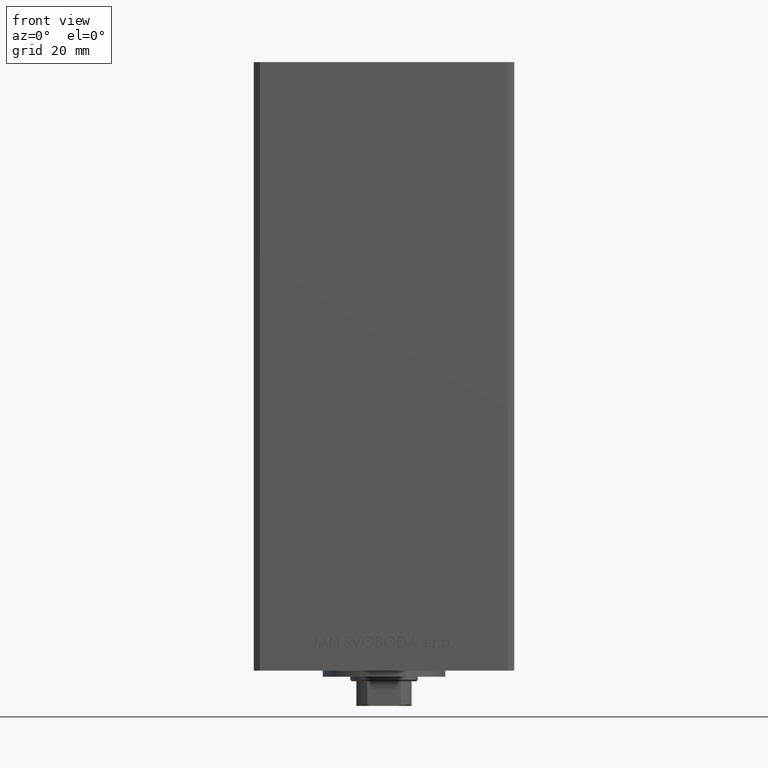
[diagram: clean part render]
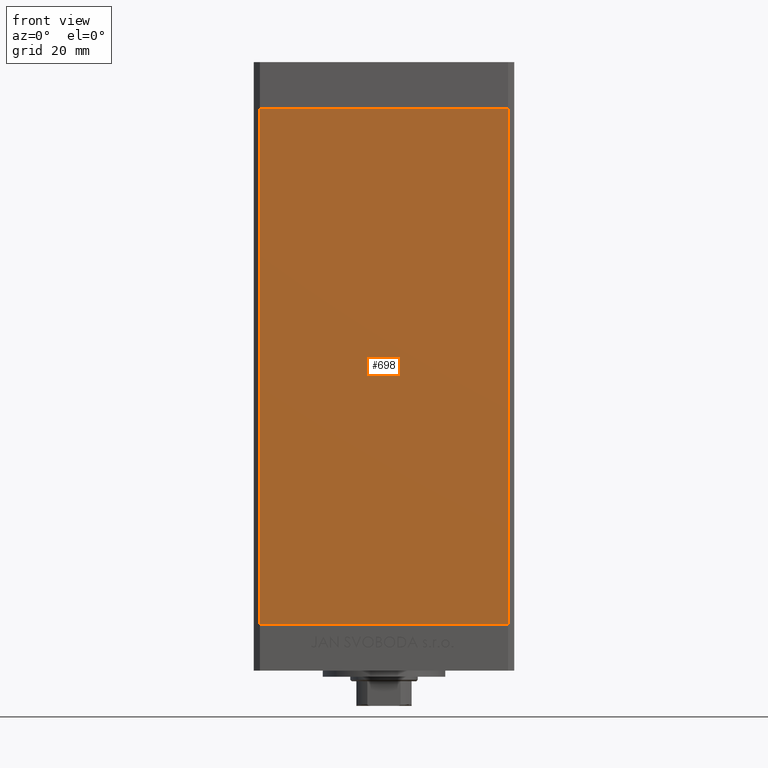
[diagram: same view with one face highlighted and labeled with its STEP entity id]
A machine part, front view. The second image highlights one B-rep face of the part: STEP entity #698.
In plain terms, the highlighted planar face has unit normal (0, 1, 0).
Its self-contained STEP definition (entity closure, byte-faithful):
#698 = ADVANCED_FACE ( 'NONE', ( #17266 ), #32462, .F. ) ;
#1788 = EDGE_CURVE ( 'NONE', #31032, #37610, #11980, .T. ) ;
#2165 = VERTEX_POINT ( 'NONE', #17840 ) ;
#3482 = CARTESIAN_POINT ( 'NONE',  ( 40.49999999999998579, -37.50000000000000711, 0.000000000000000000 ) ) ;
#4136 = CARTESIAN_POINT ( 'NONE',  ( -40.49999999999998579, -37.50000000000000711, 168.5000000000000000 ) ) ;
#4647 = LINE ( 'NONE', #23120, #24851 ) ;
#8666 = EDGE_LOOP ( 'NONE', ( #48611, #38429, #38524, #15689 ) ) ;
#11980 = LINE ( 'NONE', #23664, #43028 ) ;
#12565 = DIRECTION ( 'NONE',  ( -0.000000000000000000, -0.000000000000000000, -1.000000000000000000 ) ) ;
#13528 = CARTESIAN_POINT ( 'NONE',  ( -40.49999999999998579, -37.50000000000000711, 168.5000000000000000 ) ) ;
#15575 = LINE ( 'NONE', #27264, #33162 ) ;
#15689 = ORIENTED_EDGE ( 'NONE', *, *, #44007, .T. ) ;
#17266 = FACE_OUTER_BOUND ( 'NONE', #8666, .T. ) ;
#17380 = VECTOR ( 'NONE', #34305, 1000.000000000000000 ) ;
#17840 = CARTESIAN_POINT ( 'NONE',  ( -40.49999999999998579, -37.50000000000000711, 0.000000000000000000 ) ) ;
#19439 = DIRECTION ( 'NONE',  ( -0.000000000000000000, -0.000000000000000000, -1.000000000000000000 ) ) ;
#23120 = CARTESIAN_POINT ( 'NONE',  ( -40.49999999999998579, -37.50000000000000711, 0.000000000000000000 ) ) ;
#23368 = DIRECTION ( 'NONE',  ( 1.000000000000000000, 0.000000000000000000, 0.000000000000000000 ) ) ;
#23664 = CARTESIAN_POINT ( 'NONE',  ( 40.49999999999998579, -37.50000000000000711, 168.5000000000000000 ) ) ;
#24851 = VECTOR ( 'NONE', #23368, 1000.000000000000000 ) ;
#26088 = EDGE_CURVE ( 'NONE', #2165, #37610, #4647, .T. ) ;
#26285 = VERTEX_POINT ( 'NONE', #28992 ) ;
#27264 = CARTESIAN_POINT ( 'NONE',  ( -40.49999999999998579, -37.50000000000000711, 168.5000000000000000 ) ) ;
#28729 = DIRECTION ( 'NONE',  ( 0.000000000000000000, 1.000000000000000000, 0.000000000000000000 ) ) ;
#28992 = CARTESIAN_POINT ( 'NONE',  ( -40.49999999999998579, -37.50000000000000711, 168.5000000000000000 ) ) ;
#30574 = LINE ( 'NONE', #4136, #17380 ) ;
#31032 = VERTEX_POINT ( 'NONE', #41084 ) ;
#32462 = PLANE ( 'NONE',  #36617 ) ;
#33162 = VECTOR ( 'NONE', #12565, 1000.000000000000000 ) ;
#34305 = DIRECTION ( 'NONE',  ( 1.000000000000000000, 0.000000000000000000, 0.000000000000000000 ) ) ;
#36617 = AXIS2_PLACEMENT_3D ( 'NONE', #13528, #28729, #43928 ) ;
#37610 = VERTEX_POINT ( 'NONE', #3482 ) ;
#38429 = ORIENTED_EDGE ( 'NONE', *, *, #1788, .F. ) ;
#38524 = ORIENTED_EDGE ( 'NONE', *, *, #45250, .F. ) ;
#41084 = CARTESIAN_POINT ( 'NONE',  ( 40.49999999999998579, -37.50000000000000711, 168.5000000000000000 ) ) ;
#43028 = VECTOR ( 'NONE', #19439, 1000.000000000000000 ) ;
#43928 = DIRECTION ( 'NONE',  ( 0.000000000000000000, -0.000000000000000000, 1.000000000000000000 ) ) ;
#44007 = EDGE_CURVE ( 'NONE', #26285, #2165, #15575, .T. ) ;
#45250 = EDGE_CURVE ( 'NONE', #26285, #31032, #30574, .T. ) ;
#48611 = ORIENTED_EDGE ( 'NONE', *, *, #26088, .T. ) ;